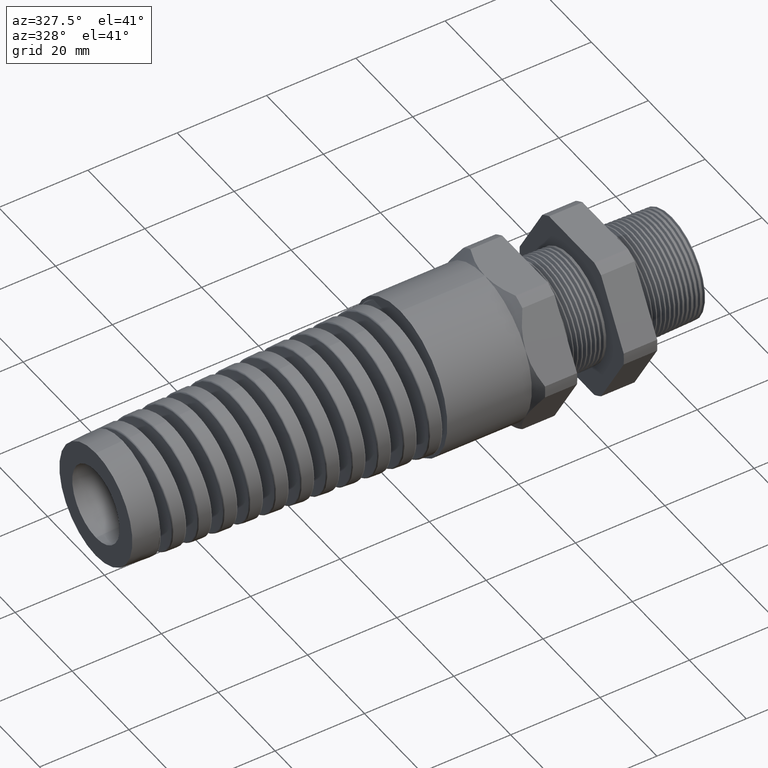
[diagram: clean part render]
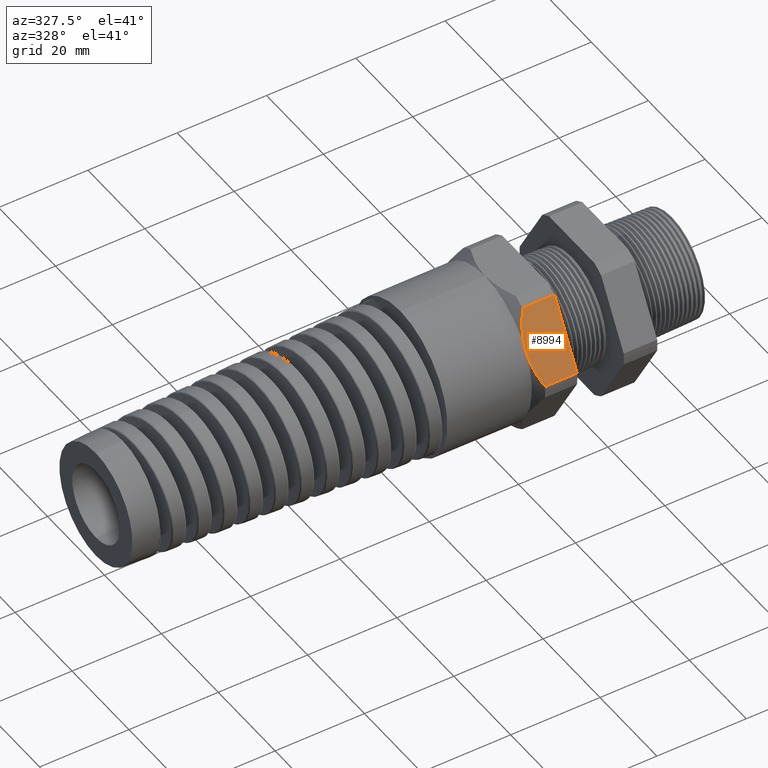
[diagram: same view with one face highlighted and labeled with its STEP entity id]
A machine part, auxiliary view. The second image highlights one B-rep face of the part: STEP entity #8994.
In plain terms, the highlighted planar face has unit normal (0, -0.866, 0.5).
Its self-contained STEP definition (entity closure, byte-faithful):
#8974 = ORIENTED_EDGE ( 'NONE', *, *, #8975, .F. ) ;
#8975 = EDGE_CURVE ( 'NONE', #8976, #9002, #12578, .T. ) ;
#8976 = VERTEX_POINT ( 'NONE', #12574 ) ;
#8977 = ORIENTED_EDGE ( 'NONE', *, *, #8978, .F. ) ;
#8978 = EDGE_CURVE ( 'NONE', #8991, #8976, #12573, .T. ) ;
#8988 = VERTEX_POINT ( 'NONE', #12614 ) ;
#8990 = EDGE_CURVE ( 'NONE', #8991, #8988, #12613, .T. ) ;
#8991 = VERTEX_POINT ( 'NONE', #12609 ) ;
#8994 = ADVANCED_FACE ( 'NONE', ( #12603 ), #12602, .T. ) ;
#8995 = EDGE_LOOP ( 'NONE', ( #8996, #8997, #9000, #8974, #8977 ) ) ;
#8996 = ORIENTED_EDGE ( 'NONE', *, *, #8990, .T. ) ;
#8997 = ORIENTED_EDGE ( 'NONE', *, *, #8998, .T. ) ;
#8998 = EDGE_CURVE ( 'NONE', #8988, #8999, #12597, .T. ) ;
#8999 = VERTEX_POINT ( 'NONE', #12596 ) ;
#9000 = ORIENTED_EDGE ( 'NONE', *, *, #9001, .T. ) ;
#9001 = EDGE_CURVE ( 'NONE', #8999, #9002, #12595, .T. ) ;
#9002 = VERTEX_POINT ( 'NONE', #12594 ) ;
#12570 = DIRECTION ( 'NONE',  ( 0.0000000000000000000, -0.4999999999999997200, -0.8660254037844388200 ) ) ;
#12571 = VECTOR ( 'NONE', #12570, 39.37007874015748900 ) ;
#12572 = CARTESIAN_POINT ( 'NONE',  ( -1.016220472440944900, -0.4404165124598852800, 0.5371762239271872200 ) ) ;
#12573 = LINE ( 'NONE', #12572, #12571 ) ;
#12574 = CARTESIAN_POINT ( 'NONE',  ( -1.016220472440944900, -0.7194909755756820900, 0.05380507471562026600 ) ) ;
#12575 = DIRECTION ( 'NONE',  ( -1.000000000000000000, 0.0000000000000000000, 0.0000000000000000000 ) ) ;
#12576 = VECTOR ( 'NONE', #12575, 39.37007874015748100 ) ;
#12577 = CARTESIAN_POINT ( 'NONE',  ( 0.2800000000000000300, -0.7194909755756820900, 0.05380507471562026600 ) ) ;
#12578 = LINE ( 'NONE', #12577, #12576 ) ;
#12589 = CARTESIAN_POINT ( 'NONE',  ( -1.362166147062723500, -0.5088871528993772500, 0.4185815958592074000 ) ) ;
#12590 = CARTESIAN_POINT ( 'NONE',  ( -1.357275015785044800, -0.4956954080403316300, 0.4414303681955598600 ) ) ;
#12591 = CARTESIAN_POINT ( 'NONE',  ( -1.338544454036247400, -0.4566257321431000400, 0.5091010318848137000 ) ) ;
#12592 = CARTESIAN_POINT ( 'NONE',  ( -1.320672744323630100, -0.4312502584378783400, 0.5530526416083857400 ) ) ;
#12593 = CARTESIAN_POINT ( 'NONE',  ( -1.299051181102362600, -0.4063420493440885700, 0.5961949252843791200 ) ) ;
#12594 = CARTESIAN_POINT ( 'NONE',  ( -1.299051181102362400, -0.7194909755756820900, 0.05380507471562026600 ) ) ;
#12595 = B_SPLINE_CURVE_WITH_KNOTS ( 'NONE', 3,
 ( #12640, #12639, #12638, #12637, #12636, #12635 ),
 .UNSPECIFIED., .F., .F.,
 ( 4, 2, 4 ),
 ( 0.008163776578903780100, 0.01224274182034620000, 0.01632170706178862100 ),
 .UNSPECIFIED. ) ;
#12596 = CARTESIAN_POINT ( 'NONE',  ( -1.370551181102362300, -0.5629165124598853900, 0.3249999999999999600 ) ) ;
#12597 = B_SPLINE_CURVE_WITH_KNOTS ( 'NONE', 3,
 ( #12593, #12592, #12591, #12590, #12589, #12645, #12644, #12643, #12642, #12641 ),
 .UNSPECIFIED., .F., .F.,
 ( 4, 2, 2, 2, 4 ),
 ( 2.483249165375343400E-007, 0.004082012451910161500, 0.006122894515406970800, 0.007143335547155375500, 0.008163776578903780100 ),
 .UNSPECIFIED. ) ;
#12598 = DIRECTION ( 'NONE',  ( 0.0000000000000000000, -0.4999999999999997200, -0.8660254037844388200 ) ) ;
#12599 = DIRECTION ( 'NONE',  ( 0.0000000000000000000, -0.8660254037844388200, 0.4999999999999997200 ) ) ;
#12600 = CARTESIAN_POINT ( 'NONE',  ( 0.2800000000000000300, -0.7194909755756819800, 0.05380507471562046700 ) ) ;
#12601 = AXIS2_PLACEMENT_3D ( 'NONE', #12600, #12599, #12598 ) ;
#12602 = PLANE ( 'NONE',  #12601 ) ;
#12603 = FACE_OUTER_BOUND ( 'NONE', #8995, .T. ) ;
#12609 = CARTESIAN_POINT ( 'NONE',  ( -1.016220472440944900, -0.4063420493440885700, 0.5961949252843791200 ) ) ;
#12610 = DIRECTION ( 'NONE',  ( -1.000000000000000000, 0.0000000000000000000, 0.0000000000000000000 ) ) ;
#12611 = VECTOR ( 'NONE', #12610, 39.37007874015748100 ) ;
#12612 = CARTESIAN_POINT ( 'NONE',  ( 0.2800000000000000300, -0.4063420493440885700, 0.5961949252843791200 ) ) ;
#12613 = LINE ( 'NONE', #12612, #12611 ) ;
#12614 = CARTESIAN_POINT ( 'NONE',  ( -1.299051181102362600, -0.4063420493440885700, 0.5961949252843791200 ) ) ;
#12635 = CARTESIAN_POINT ( 'NONE',  ( -1.299051181102362400, -0.7194909755756820900, 0.05380507471562026600 ) ) ;
#12636 = CARTESIAN_POINT ( 'NONE',  ( -1.320699513098780400, -0.6945519286446000300, 0.09700077109259906700 ) ) ;
#12637 = CARTESIAN_POINT ( 'NONE',  ( -1.338823271173571500, -0.6687756690813084800, 0.1416465622853033400 ) ) ;
#12638 = CARTESIAN_POINT ( 'NONE',  ( -1.363711424728060800, -0.6165592345672921100, 0.2320880798536729100 ) ) ;
#12639 = CARTESIAN_POINT ( 'NONE',  ( -1.370551181102362100, -0.5900081318517967900, 0.2780759387538905800 ) ) ;
#12640 = CARTESIAN_POINT ( 'NONE',  ( -1.370551181102362300, -0.5629165124598853900, 0.3249999999999999600 ) ) ;
#12641 = CARTESIAN_POINT ( 'NONE',  ( -1.370551181102362300, -0.5629165124598853900, 0.3249999999999999600 ) ) ;
#12642 = CARTESIAN_POINT ( 'NONE',  ( -1.370551181102363200, -0.5561389602113054900, 0.3367390648454930400 ) ) ;
#12643 = CARTESIAN_POINT ( 'NONE',  ( -1.370122271002465900, -0.5492994181763346500, 0.3485854991505651400 ) ) ;
#12644 = CARTESIAN_POINT ( 'NONE',  ( -1.368418724805366300, -0.5357104722797962900, 0.3721222438646743500 ) ) ;
#12645 = CARTESIAN_POINT ( 'NONE',  ( -1.367149659663776700, -0.5289679975772972900, 0.3838005526181507100 ) ) ;